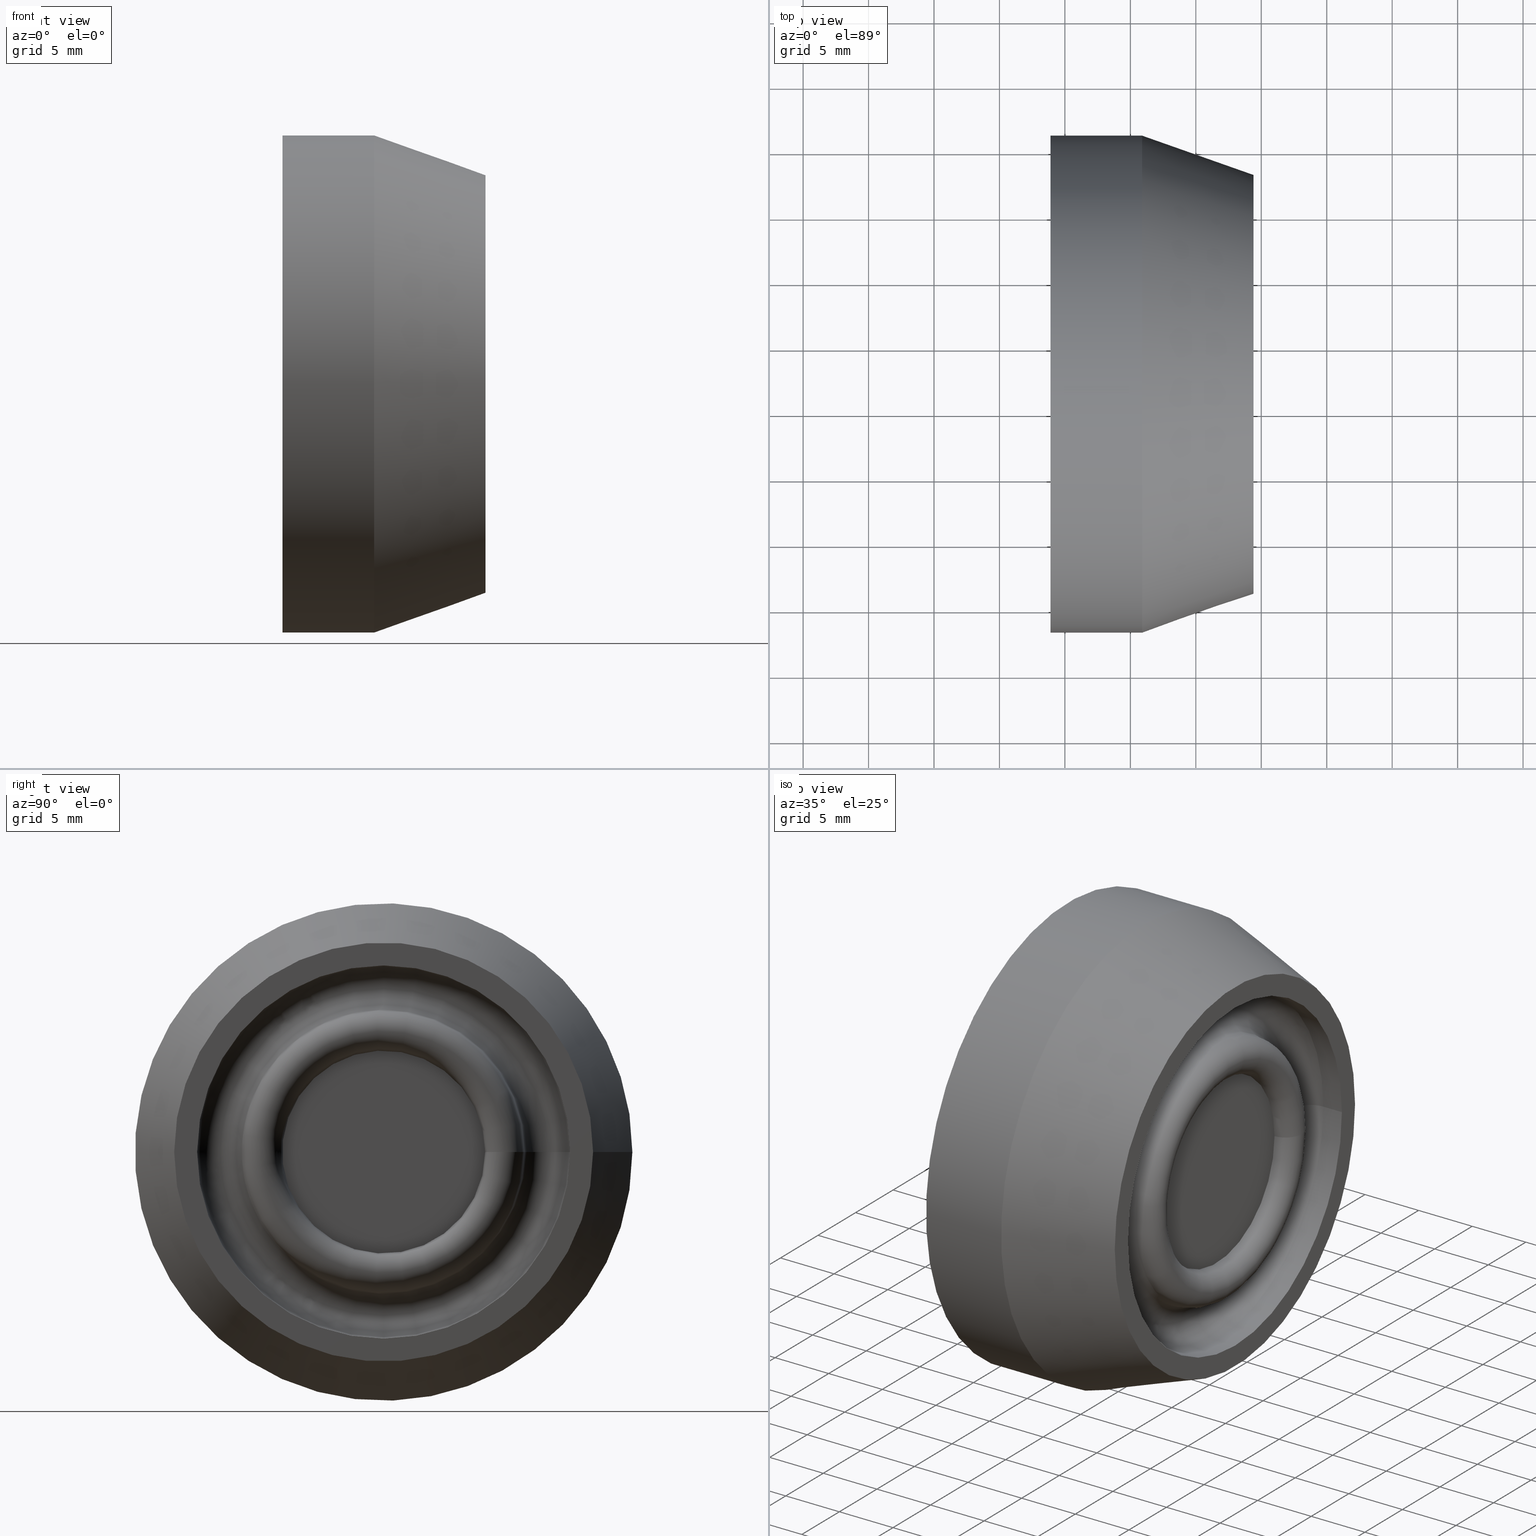
[diagram: canonical four-view strip — front | top / right | iso, engineering-drawing reading convention]
A machine part, canonical four-view strip (front | top / right | iso — engineering-drawing reading convention). The complete STEP part file that produces these views, byte-faithful:
ISO-10303-21;
HEADER;
/****************************************************************
 * Generated by software with PDE/Lib inside                    *
 * PDElib Version v51a, created Thu 12/14/2006                  *
 * International Technegroup Inc. (www.iti-oh.com)              *
 ****************************************************************/
FILE_DESCRIPTION((''),'2;1');
FILE_NAME('M:\\cad\\1PB\\BTx\\BTx.stp','2007-11-21T14:14:48',('Philipp'),(''),'Autodesk Inventor 2008','Autodesk Inventor 2008','');
FILE_SCHEMA(('AUTOMOTIVE_DESIGN { 1 0 10303 214 1 1 1 1 }'));
ENDSEC;
DATA;
#5=APPLICATION_CONTEXT('automotive design');
#6=APPLICATION_PROTOCOL_DEFINITION('International Standard','automotive_design',2001,#5);
#7=PRODUCT_CONTEXT('',#5,'mechanical');
#8=PRODUCT('BTx','BTx',$,(#7));
#9=PRODUCT_RELATED_PRODUCT_CATEGORY('part',$,(#8));
#10=PRODUCT_DEFINITION_FORMATION('',$,#8);
#11=PRODUCT_DEFINITION_CONTEXT('part definition',#5,'design');
#12=PRODUCT_DEFINITION('',$,#10,#11);
#18=(NAMED_UNIT(*)PLANE_ANGLE_UNIT()SI_UNIT($,.RADIAN.));
#19=DIMENSIONAL_EXPONENTS(0.0,0.0,0.0,0.0,0.0,0.0,0.0);
#20=PLANE_ANGLE_MEASURE_WITH_UNIT(PLANE_ANGLE_MEASURE(0.017453292500000),#18);
#24=(CONVERSION_BASED_UNIT('DEGREE',#20)NAMED_UNIT(#19)PLANE_ANGLE_UNIT());
#28=(NAMED_UNIT(*)SI_UNIT($,.STERADIAN.)SOLID_ANGLE_UNIT());
#32=(LENGTH_UNIT()NAMED_UNIT(*)SI_UNIT(.MILLI.,.METRE.));
#34=UNCERTAINTY_MEASURE_WITH_UNIT(LENGTH_MEASURE(0.010000000000000),#32,'DISTANCE_ACCURACY_VALUE','');
#36=(GEOMETRIC_REPRESENTATION_CONTEXT(3)GLOBAL_UNCERTAINTY_ASSIGNED_CONTEXT((#34))GLOBAL_UNIT_ASSIGNED_CONTEXT((#24,#28,#32))REPRESENTATION_CONTEXT('None','None'));
#37=AXIS2_PLACEMENT_3D('',#38,#39,#40);
#38=CARTESIAN_POINT('',(0.0,0.0,0.0));
#39=DIRECTION('',(0.0,0.0,1.0));
#40=DIRECTION('',(1.0,0.0,0.0));
#41=SHAPE_REPRESENTATION('',(#37),#36);
#42=PRODUCT_DEFINITION_SHAPE('','',#12);
#43=SHAPE_DEFINITION_REPRESENTATION(#42,#41);
#49=(NAMED_UNIT(*)PLANE_ANGLE_UNIT()SI_UNIT($,.RADIAN.));
#50=DIMENSIONAL_EXPONENTS(0.0,0.0,0.0,0.0,0.0,0.0,0.0);
#51=PLANE_ANGLE_MEASURE_WITH_UNIT(PLANE_ANGLE_MEASURE(0.017453292500000),#49);
#55=(CONVERSION_BASED_UNIT('DEGREE',#51)NAMED_UNIT(#50)PLANE_ANGLE_UNIT());
#59=(NAMED_UNIT(*)SI_UNIT($,.STERADIAN.)SOLID_ANGLE_UNIT());
#63=(LENGTH_UNIT()NAMED_UNIT(*)SI_UNIT(.MILLI.,.METRE.));
#65=UNCERTAINTY_MEASURE_WITH_UNIT(LENGTH_MEASURE(0.000001000000000),#63,'DISTANCE_ACCURACY_VALUE','');
#67=(GEOMETRIC_REPRESENTATION_CONTEXT(3)GLOBAL_UNCERTAINTY_ASSIGNED_CONTEXT((#65))GLOBAL_UNIT_ASSIGNED_CONTEXT((#55,#59,#63))REPRESENTATION_CONTEXT('','3D'));
#68=CARTESIAN_POINT('',(-16.097371556211971,-7.888888950606166,0.0));
#69=DIRECTION('',(1.0,0.0,0.0));
#70=DIRECTION('',(0.0,0.0,-1.0));
#71=AXIS2_PLACEMENT_3D('',#68,#69,#70);
#72=CYLINDRICAL_SURFACE('',#71,14.750000000000000);
#73=CARTESIAN_POINT('',(-15.097371556211970,-7.888888950606163,14.750000000000000));
#74=VERTEX_POINT('',#73);
#75=CARTESIAN_POINT('',(-15.097371556211970,-7.888888950606166,0.0));
#76=DIRECTION('',(-1.0,0.0,0.0));
#77=DIRECTION('',(0.0,0.0,-1.0));
#78=AXIS2_PLACEMENT_3D('',#75,#76,#77);
#79=CIRCLE('',#78,14.750000000000000);
#80=EDGE_CURVE('',#74,#74,#79,.T.);
#81=ORIENTED_EDGE('',*,*,#80,.F.);
#82=EDGE_LOOP('',(#81));
#83=FACE_OUTER_BOUND('',#82,.T.);
#84=CARTESIAN_POINT('',(-16.097371556211971,-7.888888950606163,14.750000000000000));
#85=VERTEX_POINT('',#84);
#86=CARTESIAN_POINT('',(-16.097371556211971,-7.888888950606166,0.0));
#87=DIRECTION('',(1.0,0.0,0.0));
#88=DIRECTION('',(0.0,0.0,-1.0));
#89=AXIS2_PLACEMENT_3D('',#86,#87,#88);
#90=CIRCLE('',#89,14.750000000000000);
#91=EDGE_CURVE('',#85,#85,#90,.T.);
#92=ORIENTED_EDGE('',*,*,#91,.F.);
#93=EDGE_LOOP('',(#92));
#94=FACE_BOUND('',#93,.T.);
#95=ADVANCED_FACE('',(#83,#94),#72,.F.);
#96=CARTESIAN_POINT('',(-15.097371556211970,-7.888888950606166,0.0));
#97=DIRECTION('',(1.0,0.0,0.0));
#98=DIRECTION('',(0.0,0.0,-1.0));
#99=AXIS2_PLACEMENT_3D('',#96,#97,#98);
#100=PLANE('',#99);
#101=CARTESIAN_POINT('',(-15.097371556211970,-7.888888950606163,17.0));
#102=VERTEX_POINT('',#101);
#103=CARTESIAN_POINT('',(-15.097371556211970,-7.888888950606166,0.0));
#104=DIRECTION('',(-1.0,0.0,0.0));
#105=DIRECTION('',(0.0,1.0,0.0));
#106=AXIS2_PLACEMENT_3D('',#103,#104,#105);
#107=CIRCLE('',#106,17.0);
#108=EDGE_CURVE('',#102,#102,#107,.T.);
#109=ORIENTED_EDGE('',*,*,#108,.F.);
#110=EDGE_LOOP('',(#109));
#111=FACE_OUTER_BOUND('',#110,.T.);
#112=ORIENTED_EDGE('',*,*,#80,.T.);
#113=EDGE_LOOP('',(#112));
#114=FACE_BOUND('',#113,.T.);
#115=ADVANCED_FACE('',(#111,#114),#100,.T.);
#116=CARTESIAN_POINT('',(-5.513011791682246,-7.888888950606166,0.0));
#117=DIRECTION('',(-1.0,0.0,0.0));
#118=DIRECTION('',(0.0,1.0,0.0));
#119=AXIS2_PLACEMENT_3D('',#116,#117,#118);
#120=CONICAL_SURFACE('',#119,15.614019332834221,19.440034828176199);
#121=CARTESIAN_POINT('',(-4.766375170140775,-23.239389475837516,1.879832E-015));
#122=VERTEX_POINT('',#121);
#123=CARTESIAN_POINT('',(-4.766375170140775,-7.888888950606166,0.0));
#124=DIRECTION('',(-1.0,0.0,0.0));
#125=DIRECTION('',(0.0,1.0,0.0));
#126=AXIS2_PLACEMENT_3D('',#123,#124,#125);
#127=CIRCLE('',#126,15.350500525231350);
#128=EDGE_CURVE('',#122,#122,#127,.T.);
#129=ORIENTED_EDGE('',*,*,#128,.F.);
#130=EDGE_LOOP('',(#129));
#131=FACE_OUTER_BOUND('',#130,.T.);
#132=CARTESIAN_POINT('',(-9.439957015318623,-24.888888950606169,-2.081831E-015));
#133=VERTEX_POINT('',#132);
#134=CARTESIAN_POINT('',(-9.439957015318623,-7.888888950606166,0.0));
#135=DIRECTION('',(1.0,0.0,0.0));
#136=DIRECTION('',(0.0,1.0,0.0));
#137=AXIS2_PLACEMENT_3D('',#134,#135,#136);
#138=CIRCLE('',#137,17.0);
#139=EDGE_CURVE('',#133,#133,#138,.T.);
#140=ORIENTED_EDGE('',*,*,#139,.F.);
#141=EDGE_LOOP('',(#140));
#142=FACE_BOUND('',#141,.T.);
#143=ADVANCED_FACE('',(#131,#142),#120,.F.);
#144=CARTESIAN_POINT('',(-4.329749069226685,-4.013888950606166,0.0));
#145=DIRECTION('',(1.0,0.0,0.0));
#146=DIRECTION('',(0.0,0.0,-1.0));
#147=AXIS2_PLACEMENT_3D('',#144,#145,#146);
#148=PLANE('',#147);
#149=CARTESIAN_POINT('',(-4.329749069226685,-7.888888950606164,9.327855614887620));
#150=VERTEX_POINT('',#149);
#151=CARTESIAN_POINT('',(-4.329749069226685,-7.888888950606166,0.0));
#152=DIRECTION('',(-1.0,0.0,0.0));
#153=DIRECTION('',(0.0,0.0,-1.0));
#154=AXIS2_PLACEMENT_3D('',#151,#152,#153);
#155=CIRCLE('',#154,9.327855614887620);
#156=EDGE_CURVE('',#150,#150,#155,.F.);
#157=ORIENTED_EDGE('',*,*,#156,.F.);
#158=EDGE_LOOP('',(#157));
#159=FACE_OUTER_BOUND('',#158,.T.);
#160=ADVANCED_FACE('',(#159),#148,.F.);
#161=CARTESIAN_POINT('',(-4.329749069226686,-7.888888950606168,9.327855614887621));
#162=CARTESIAN_POINT('',(-6.079749069226686,-7.888888950606168,10.431210183622362));
#163=CARTESIAN_POINT('',(-6.079749069226686,-7.888888950606168,12.500000000000000));
#164=CARTESIAN_POINT('',(-6.079749069226686,-7.888888950606168,14.568789816377640));
#165=CARTESIAN_POINT('',(-4.329749069226685,-7.888888950606168,15.672144385112381));
#166=CARTESIAN_POINT('',(-4.329749069226686,-17.216744565493784,9.327855614887618));
#167=CARTESIAN_POINT('',(-6.079749069226686,-18.320099134228528,10.431210183622358));
#168=CARTESIAN_POINT('',(-6.079749069226686,-20.388888950606162,12.499999999999995));
#169=CARTESIAN_POINT('',(-6.079749069226686,-22.457678766983804,14.568789816377633));
#170=CARTESIAN_POINT('',(-4.329749069226685,-23.561033335718541,15.672144385112375));
#171=CARTESIAN_POINT('',(-4.329749069226686,-17.216744565493787,-1.776357E-015));
#172=CARTESIAN_POINT('',(-6.079749069226686,-18.320099134228524,-1.776357E-015));
#173=CARTESIAN_POINT('',(-6.079749069226686,-20.388888950606166,-1.776357E-015));
#174=CARTESIAN_POINT('',(-6.079749069226686,-22.457678766983804,-1.776357E-015));
#175=CARTESIAN_POINT('',(-4.329749069226685,-23.561033335718548,-1.776357E-015));
#176=CARTESIAN_POINT('',(-4.329749069226686,-17.216744565493784,-9.327855614887621));
#177=CARTESIAN_POINT('',(-6.079749069226686,-18.320099134228528,-10.431210183622362));
#178=CARTESIAN_POINT('',(-6.079749069226686,-20.388888950606162,-12.499999999999996));
#179=CARTESIAN_POINT('',(-6.079749069226686,-22.457678766983804,-14.568789816377640));
#180=CARTESIAN_POINT('',(-4.329749069226685,-23.561033335718541,-15.672144385112377));
#181=CARTESIAN_POINT('',(-4.329749069226686,-7.888888950606164,-9.327855614887621));
#182=CARTESIAN_POINT('',(-6.079749069226686,-7.888888950606164,-10.431210183622362));
#183=CARTESIAN_POINT('',(-6.079749069226686,-7.888888950606164,-12.500000000000000));
#184=CARTESIAN_POINT('',(-6.079749069226686,-7.888888950606164,-14.568789816377640));
#185=CARTESIAN_POINT('',(-4.329749069226685,-7.888888950606164,-15.672144385112381));
#186=CARTESIAN_POINT('',(-4.329749069226686,1.438966664281455,-9.327855614887618));
#187=CARTESIAN_POINT('',(-6.079749069226686,2.542321233016196,-10.431210183622358));
#188=CARTESIAN_POINT('',(-6.079749069226686,4.611111049393832,-12.499999999999995));
#189=CARTESIAN_POINT('',(-6.079749069226686,6.679900865771471,-14.568789816377633));
#190=CARTESIAN_POINT('',(-4.329749069226685,7.783255434506213,-15.672144385112375));
#191=CARTESIAN_POINT('',(-4.329749069226686,1.438966664281455,1.776357E-015));
#192=CARTESIAN_POINT('',(-6.079749069226686,2.542321233016196,1.776357E-015));
#193=CARTESIAN_POINT('',(-6.079749069226686,4.611111049393834,1.776357E-015));
#194=CARTESIAN_POINT('',(-6.079749069226686,6.679900865771474,1.776357E-015));
#195=CARTESIAN_POINT('',(-4.329749069226685,7.783255434506215,1.776357E-015));
#196=CARTESIAN_POINT('',(-4.329749069226686,1.438966664281452,9.327855614887621));
#197=CARTESIAN_POINT('',(-6.079749069226686,2.542321233016192,10.431210183622362));
#198=CARTESIAN_POINT('',(-6.079749069226686,4.611111049393829,12.499999999999996));
#199=CARTESIAN_POINT('',(-6.079749069226686,6.679900865771469,14.568789816377640));
#200=CARTESIAN_POINT('',(-4.329749069226685,7.783255434506210,15.672144385112377));
#201=CARTESIAN_POINT('',(-4.329749069226686,-7.888888950606168,9.327855614887621));
#202=CARTESIAN_POINT('',(-6.079749069226686,-7.888888950606168,10.431210183622362));
#203=CARTESIAN_POINT('',(-6.079749069226686,-7.888888950606168,12.500000000000000));
#204=CARTESIAN_POINT('',(-6.079749069226686,-7.888888950606168,14.568789816377640));
#205=CARTESIAN_POINT('',(-4.329749069226685,-7.888888950606168,15.672144385112381));
#213=(BOUNDED_SURFACE()B_SPLINE_SURFACE(2,2,((#161,#166,#171,#176,#181,#186,#191,#196,#201),(#162,#167,#172,#177,#182,#187,#192,#197,#202),(#163,#168,#173,#178,#183,#188,#193,#198,#203),(#164,#169,#174,#179,#184,#189,#194,#199,#204),(#165,#170,#175,#180,#185,#190,#195,#200,#205)),.UNSPECIFIED.,.F.,.T.,.U.)B_SPLINE_SURFACE_WITH_KNOTS((3,2,3),(3,2,2,2,3),(-2.579056409045938,-1.570796326794897,-0.562536244543855),(0.0,1.570796326794897,3.141592653589793,4.712388980384690,6.283185307179586),.UNSPECIFIED.)GEOMETRIC_REPRESENTATION_ITEM()RATIONAL_B_SPLINE_SURFACE(((1.0,0.707106781186548,1.0,0.707106781186548,1.0,0.707106781186548,1.0,0.707106781186548,1.0),(0.875595035770914,0.619139187366891,0.875595035770914,0.619139187366891,0.875595035770914,0.619139187366891,0.875595035770914,0.619139187366891,0.875595035770914),(1.0,0.707106781186548,1.0,0.707106781186548,1.0,0.707106781186548,1.0,0.707106781186548,1.0),(0.875595035770912,0.619139187366890,0.875595035770912,0.619139187366890,0.875595035770912,0.619139187366890,0.875595035770912,0.619139187366890,0.875595035770912),(1.0,0.707106781186548,1.0,0.707106781186548,1.0,0.707106781186548,1.0,0.707106781186548,1.0)))REPRESENTATION_ITEM('')SURFACE());
#214=ORIENTED_EDGE('',*,*,#156,.T.);
#215=EDGE_LOOP('',(#214));
#216=FACE_OUTER_BOUND('',#215,.T.);
#217=ORIENTED_EDGE('',*,*,#128,.T.);
#218=EDGE_LOOP('',(#217));
#219=FACE_BOUND('',#218,.T.);
#220=ADVANCED_FACE('',(#216,#219),#213,.F.);
#221=CARTESIAN_POINT('',(-12.597371556211970,-7.888888950606166,0.0));
#222=DIRECTION('',(1.0,0.0,0.0));
#223=DIRECTION('',(0.0,1.0,0.0));
#224=AXIS2_PLACEMENT_3D('',#221,#222,#223);
#225=CYLINDRICAL_SURFACE('',#224,17.0);
#226=ORIENTED_EDGE('',*,*,#108,.T.);
#227=EDGE_LOOP('',(#226));
#228=FACE_OUTER_BOUND('',#227,.T.);
#229=ORIENTED_EDGE('',*,*,#139,.T.);
#230=EDGE_LOOP('',(#229));
#231=FACE_BOUND('',#230,.T.);
#232=ADVANCED_FACE('',(#228,#231),#225,.F.);
#233=CARTESIAN_POINT('',(-4.847371556211970,-7.888888950606166,0.0));
#234=DIRECTION('',(-1.0,0.0,0.0));
#235=DIRECTION('',(0.0,1.0,0.0));
#236=AXIS2_PLACEMENT_3D('',#233,#234,#235);
#237=CONICAL_SURFACE('',#236,17.500000000000000,19.440034828176199);
#238=CARTESIAN_POINT('',(-0.597371556211971,8.111111049393836,0.0));
#239=VERTEX_POINT('',#238);
#240=CARTESIAN_POINT('',(-0.597371556211970,-7.888888950606166,0.0));
#241=DIRECTION('',(1.0,0.0,0.0));
#242=DIRECTION('',(0.0,1.0,0.0));
#243=AXIS2_PLACEMENT_3D('',#240,#241,#242);
#244=CIRCLE('',#243,16.0);
#245=EDGE_CURVE('',#239,#239,#244,.T.);
#246=ORIENTED_EDGE('',*,*,#245,.F.);
#247=EDGE_LOOP('',(#246));
#248=FACE_OUTER_BOUND('',#247,.T.);
#249=CARTESIAN_POINT('',(-9.097371556211970,11.111111049393836,0.0));
#250=VERTEX_POINT('',#249);
#251=CARTESIAN_POINT('',(-9.097371556211970,-7.888888950606166,0.0));
#252=DIRECTION('',(1.0,0.0,0.0));
#253=DIRECTION('',(0.0,1.0,0.0));
#254=AXIS2_PLACEMENT_3D('',#251,#252,#253);
#255=CIRCLE('',#254,19.0);
#256=EDGE_CURVE('',#250,#250,#255,.T.);
#257=ORIENTED_EDGE('',*,*,#256,.T.);
#258=EDGE_LOOP('',(#257));
#259=FACE_BOUND('',#258,.T.);
#260=ADVANCED_FACE('',(#248,#259),#237,.T.);
#261=CARTESIAN_POINT('',(-0.597371556211971,7.236111049393835,0.0));
#262=DIRECTION('',(1.0,0.0,0.0));
#263=DIRECTION('',(0.0,0.0,-1.0));
#264=AXIS2_PLACEMENT_3D('',#261,#262,#263);
#265=PLANE('',#264);
#266=ORIENTED_EDGE('',*,*,#245,.T.);
#267=EDGE_LOOP('',(#266));
#268=FACE_OUTER_BOUND('',#267,.T.);
#269=CARTESIAN_POINT('',(-0.597371556211971,6.361111049393835,0.0));
#270=VERTEX_POINT('',#269);
#271=CARTESIAN_POINT('',(-0.597371556211970,-7.888888950606166,0.0));
#272=DIRECTION('',(1.0,0.0,0.0));
#273=DIRECTION('',(0.0,1.0,0.0));
#274=AXIS2_PLACEMENT_3D('',#271,#272,#273);
#275=CIRCLE('',#274,14.250000000000000);
#276=EDGE_CURVE('',#270,#270,#275,.T.);
#277=ORIENTED_EDGE('',*,*,#276,.F.);
#278=EDGE_LOOP('',(#277));
#279=FACE_BOUND('',#278,.T.);
#280=ADVANCED_FACE('',(#268,#279),#265,.T.);
#281=CARTESIAN_POINT('',(-1.463560312719328,-7.888888950606166,0.0));
#282=DIRECTION('',(1.0,0.0,0.0));
#283=DIRECTION('',(0.0,1.0,0.0));
#284=AXIS2_PLACEMENT_3D('',#281,#282,#283);
#285=CYLINDRICAL_SURFACE('',#284,14.250000000000000);
#286=CARTESIAN_POINT('',(-2.329749069226686,6.361111049393835,0.0));
#287=VERTEX_POINT('',#286);
#288=CARTESIAN_POINT('',(-2.329749069226685,-7.888888950606166,0.0));
#289=DIRECTION('',(1.0,0.0,0.0));
#290=DIRECTION('',(0.0,1.0,0.0));
#291=AXIS2_PLACEMENT_3D('',#288,#289,#290);
#292=CIRCLE('',#291,14.250000000000000);
#293=EDGE_CURVE('',#287,#287,#292,.T.);
#294=ORIENTED_EDGE('',*,*,#293,.F.);
#295=EDGE_LOOP('',(#294));
#296=FACE_OUTER_BOUND('',#295,.T.);
#297=ORIENTED_EDGE('',*,*,#276,.T.);
#298=EDGE_LOOP('',(#297));
#299=FACE_BOUND('',#298,.T.);
#300=ADVANCED_FACE('',(#296,#299),#285,.F.);
#301=CARTESIAN_POINT('',(-2.329749069226685,-7.888888950606168,10.750000000000000));
#302=CARTESIAN_POINT('',(-4.079749069226686,-7.888888950606168,10.750000000000000));
#303=CARTESIAN_POINT('',(-4.079749069226686,-7.888888950606168,12.500000000000000));
#304=CARTESIAN_POINT('',(-4.079749069226686,-7.888888950606168,14.250000000000000));
#305=CARTESIAN_POINT('',(-2.329749069226685,-7.888888950606168,14.250000000000000));
#306=CARTESIAN_POINT('',(-2.329749069226685,-18.638888950606166,10.749999999999996));
#307=CARTESIAN_POINT('',(-4.079749069226686,-18.638888950606166,10.749999999999996));
#308=CARTESIAN_POINT('',(-4.079749069226686,-20.388888950606162,12.499999999999995));
#309=CARTESIAN_POINT('',(-4.079749069226686,-22.138888950606162,14.249999999999995));
#310=CARTESIAN_POINT('',(-2.329749069226685,-22.138888950606162,14.249999999999993));
#311=CARTESIAN_POINT('',(-2.329749069226685,-18.638888950606166,-1.776357E-015));
#312=CARTESIAN_POINT('',(-4.079749069226686,-18.638888950606166,-1.776357E-015));
#313=CARTESIAN_POINT('',(-4.079749069226686,-20.388888950606166,-1.776357E-015));
#314=CARTESIAN_POINT('',(-4.079749069226686,-22.138888950606166,-1.776357E-015));
#315=CARTESIAN_POINT('',(-2.329749069226685,-22.138888950606166,-1.776357E-015));
#316=CARTESIAN_POINT('',(-2.329749069226685,-18.638888950606166,-10.750000000000000));
#317=CARTESIAN_POINT('',(-4.079749069226686,-18.638888950606166,-10.750000000000000));
#318=CARTESIAN_POINT('',(-4.079749069226686,-20.388888950606162,-12.499999999999996));
#319=CARTESIAN_POINT('',(-4.079749069226686,-22.138888950606162,-14.249999999999998));
#320=CARTESIAN_POINT('',(-2.329749069226685,-22.138888950606162,-14.249999999999998));
#321=CARTESIAN_POINT('',(-2.329749069226685,-7.888888950606164,-10.750000000000000));
#322=CARTESIAN_POINT('',(-4.079749069226686,-7.888888950606164,-10.750000000000000));
#323=CARTESIAN_POINT('',(-4.079749069226686,-7.888888950606164,-12.500000000000000));
#324=CARTESIAN_POINT('',(-4.079749069226686,-7.888888950606164,-14.250000000000000));
#325=CARTESIAN_POINT('',(-2.329749069226685,-7.888888950606164,-14.250000000000000));
#326=CARTESIAN_POINT('',(-2.329749069226685,2.861111049393834,-10.749999999999996));
#327=CARTESIAN_POINT('',(-4.079749069226686,2.861111049393834,-10.749999999999996));
#328=CARTESIAN_POINT('',(-4.079749069226686,4.611111049393832,-12.499999999999995));
#329=CARTESIAN_POINT('',(-4.079749069226686,6.361111049393832,-14.249999999999995));
#330=CARTESIAN_POINT('',(-2.329749069226685,6.361111049393832,-14.249999999999993));
#331=CARTESIAN_POINT('',(-2.329749069226685,2.861111049393834,1.776357E-015));
#332=CARTESIAN_POINT('',(-4.079749069226686,2.861111049393834,1.776357E-015));
#333=CARTESIAN_POINT('',(-4.079749069226686,4.611111049393834,1.776357E-015));
#334=CARTESIAN_POINT('',(-4.079749069226686,6.361111049393834,1.776357E-015));
#335=CARTESIAN_POINT('',(-2.329749069226685,6.361111049393834,1.776357E-015));
#336=CARTESIAN_POINT('',(-2.329749069226685,2.861111049393830,10.750000000000000));
#337=CARTESIAN_POINT('',(-4.079749069226686,2.861111049393831,10.750000000000000));
#338=CARTESIAN_POINT('',(-4.079749069226686,4.611111049393829,12.499999999999996));
#339=CARTESIAN_POINT('',(-4.079749069226686,6.361111049393829,14.249999999999998));
#340=CARTESIAN_POINT('',(-2.329749069226685,6.361111049393830,14.249999999999998));
#341=CARTESIAN_POINT('',(-2.329749069226685,-7.888888950606168,10.750000000000000));
#342=CARTESIAN_POINT('',(-4.079749069226686,-7.888888950606168,10.750000000000000));
#343=CARTESIAN_POINT('',(-4.079749069226686,-7.888888950606168,12.500000000000000));
#344=CARTESIAN_POINT('',(-4.079749069226686,-7.888888950606168,14.250000000000000));
#345=CARTESIAN_POINT('',(-2.329749069226685,-7.888888950606168,14.250000000000000));
#353=(BOUNDED_SURFACE()B_SPLINE_SURFACE(2,2,((#301,#306,#311,#316,#321,#326,#331,#336,#341),(#302,#307,#312,#317,#322,#327,#332,#337,#342),(#303,#308,#313,#318,#323,#328,#333,#338,#343),(#304,#309,#314,#319,#324,#329,#334,#339,#344),(#305,#310,#315,#320,#325,#330,#335,#340,#345)),.UNSPECIFIED.,.F.,.T.,.U.)B_SPLINE_SURFACE_WITH_KNOTS((3,2,3),(3,2,2,2,3),(-3.141592653589794,-1.570796326794897,2.537653E-016),(0.0,1.570796326794897,3.141592653589793,4.712388980384690,6.283185307179586),.UNSPECIFIED.)GEOMETRIC_REPRESENTATION_ITEM()RATIONAL_B_SPLINE_SURFACE(((1.0,0.707106781186548,1.0,0.707106781186548,1.0,0.707106781186548,1.0,0.707106781186548,1.0),(0.707106781186546,0.499999999999999,0.707106781186546,0.499999999999999,0.707106781186546,0.499999999999999,0.707106781186546,0.499999999999999,0.707106781186546),(1.0,0.707106781186548,1.0,0.707106781186548,1.0,0.707106781186548,1.0,0.707106781186548,1.0),(0.707106781186546,0.499999999999999,0.707106781186546,0.499999999999999,0.707106781186546,0.499999999999999,0.707106781186546,0.499999999999999,0.707106781186546),(1.0,0.707106781186548,1.0,0.707106781186548,1.0,0.707106781186548,1.0,0.707106781186548,1.0)))REPRESENTATION_ITEM('')SURFACE());
#354=CARTESIAN_POINT('',(-2.329749069226686,2.861111049393834,0.0));
#355=VERTEX_POINT('',#354);
#356=CARTESIAN_POINT('',(-2.329749069226685,-7.888888950606166,0.0));
#357=DIRECTION('',(1.0,0.0,0.0));
#358=DIRECTION('',(0.0,1.0,0.0));
#359=AXIS2_PLACEMENT_3D('',#356,#357,#358);
#360=CIRCLE('',#359,10.750000000000000);
#361=EDGE_CURVE('',#355,#355,#360,.T.);
#362=ORIENTED_EDGE('',*,*,#361,.F.);
#363=EDGE_LOOP('',(#362));
#364=FACE_OUTER_BOUND('',#363,.T.);
#365=ORIENTED_EDGE('',*,*,#293,.T.);
#366=EDGE_LOOP('',(#365));
#367=FACE_BOUND('',#366,.T.);
#368=ADVANCED_FACE('',(#364,#367),#353,.T.);
#369=CARTESIAN_POINT('',(-2.329749069226686,-7.888888950606166,0.0));
#370=DIRECTION('',(1.0,0.0,0.0));
#371=DIRECTION('',(0.0,0.0,-1.0));
#372=AXIS2_PLACEMENT_3D('',#369,#370,#371);
#373=TOROIDAL_SURFACE('',#372,9.250000000000000,1.500000000000000);
#374=CARTESIAN_POINT('',(-2.329749069226686,-0.138888950606166,0.0));
#375=VERTEX_POINT('',#374);
#376=CARTESIAN_POINT('',(-2.329749069226685,-7.888888950606166,0.0));
#377=DIRECTION('',(1.0,0.0,0.0));
#378=DIRECTION('',(0.0,1.0,0.0));
#379=AXIS2_PLACEMENT_3D('',#376,#377,#378);
#380=CIRCLE('',#379,7.749999999999999);
#381=EDGE_CURVE('',#375,#375,#380,.T.);
#382=ORIENTED_EDGE('',*,*,#381,.F.);
#383=EDGE_LOOP('',(#382));
#384=FACE_OUTER_BOUND('',#383,.T.);
#385=ORIENTED_EDGE('',*,*,#361,.T.);
#386=EDGE_LOOP('',(#385));
#387=FACE_BOUND('',#386,.T.);
#388=ADVANCED_FACE('',(#384,#387),#373,.T.);
#389=CARTESIAN_POINT('',(-2.329749069226685,-4.013888950606166,0.0));
#390=DIRECTION('',(1.0,0.0,0.0));
#391=DIRECTION('',(0.0,0.0,-1.0));
#392=AXIS2_PLACEMENT_3D('',#389,#390,#391);
#393=PLANE('',#392);
#394=ORIENTED_EDGE('',*,*,#381,.T.);
#395=EDGE_LOOP('',(#394));
#396=FACE_OUTER_BOUND('',#395,.T.);
#397=ADVANCED_FACE('',(#396),#393,.T.);
#398=CARTESIAN_POINT('',(-16.097371556211971,1.611111049393835,0.0));
#399=DIRECTION('',(-1.0,0.0,0.0));
#400=DIRECTION('',(0.0,0.0,1.0));
#401=AXIS2_PLACEMENT_3D('',#398,#399,#400);
#402=PLANE('',#401);
#403=CARTESIAN_POINT('',(-16.097371556211971,11.111111049393836,0.0));
#404=VERTEX_POINT('',#403);
#405=CARTESIAN_POINT('',(-16.097371556211971,-7.888888950606166,0.0));
#406=DIRECTION('',(1.0,0.0,0.0));
#407=DIRECTION('',(0.0,1.0,0.0));
#408=AXIS2_PLACEMENT_3D('',#405,#406,#407);
#409=CIRCLE('',#408,19.0);
#410=EDGE_CURVE('',#404,#404,#409,.T.);
#411=ORIENTED_EDGE('',*,*,#410,.F.);
#412=EDGE_LOOP('',(#411));
#413=FACE_OUTER_BOUND('',#412,.T.);
#414=ORIENTED_EDGE('',*,*,#91,.T.);
#415=EDGE_LOOP('',(#414));
#416=FACE_BOUND('',#415,.T.);
#417=ADVANCED_FACE('',(#413,#416),#402,.T.);
#418=CARTESIAN_POINT('',(-12.597371556211970,-7.888888950606166,0.0));
#419=DIRECTION('',(1.0,0.0,0.0));
#420=DIRECTION('',(0.0,1.0,0.0));
#421=AXIS2_PLACEMENT_3D('',#418,#419,#420);
#422=CYLINDRICAL_SURFACE('',#421,19.0);
#423=ORIENTED_EDGE('',*,*,#256,.F.);
#424=EDGE_LOOP('',(#423));
#425=FACE_OUTER_BOUND('',#424,.T.);
#426=ORIENTED_EDGE('',*,*,#410,.T.);
#427=EDGE_LOOP('',(#426));
#428=FACE_BOUND('',#427,.T.);
#429=ADVANCED_FACE('',(#425,#428),#422,.T.);
#430=CLOSED_SHELL('',(#95,#115,#143,#160,#220,#232,#260,#280,#300,#368,#388,#397,#417,#429));
#431=MANIFOLD_SOLID_BREP('',#430);
#432=COLOUR_RGB('Rubber (Black)',0.309803992509842,0.309803992509842,0.309803992509842);
#433=FILL_AREA_STYLE_COLOUR('Rubber (Black)',#432);
#434=FILL_AREA_STYLE('Rubber (Black)',(#433));
#435=SURFACE_STYLE_FILL_AREA(#434);
#436=SURFACE_SIDE_STYLE('Rubber (Black)',(#435));
#437=SURFACE_STYLE_USAGE(.BOTH.,#436);
#438=PRESENTATION_STYLE_ASSIGNMENT((#437));
#439=STYLED_ITEM('',(#438),#431);
#440=MECHANICAL_DESIGN_GEOMETRIC_PRESENTATION_REPRESENTATION('',(#439),#36);
#441=ADVANCED_BREP_SHAPE_REPRESENTATION('ABSR',(#431),#36);
#442=SHAPE_REPRESENTATION_RELATIONSHIP('SRR','None',#441,#41);
ENDSEC;
END-ISO-10303-21;
